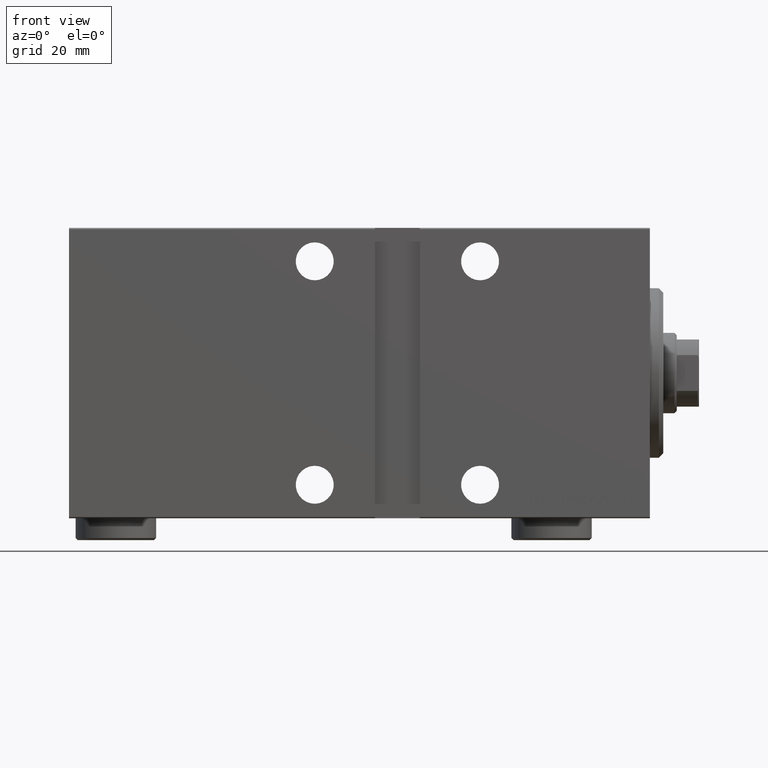
[diagram: clean part render]
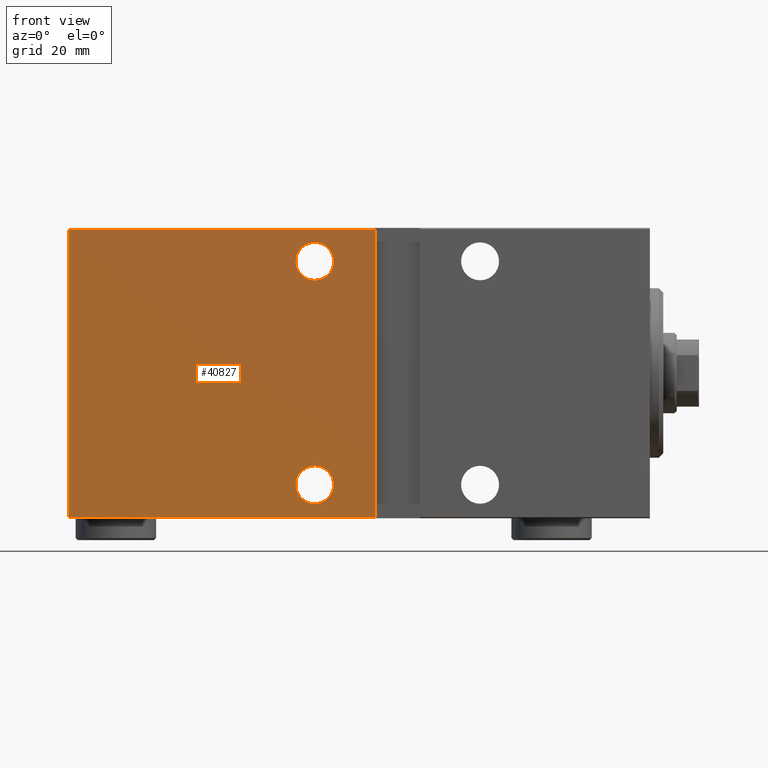
[diagram: same view with one face highlighted and labeled with its STEP entity id]
A machine part, front view. The second image highlights one B-rep face of the part: STEP entity #40827.
In plain terms, the highlighted planar face has unit normal (-0, 1, -0).
Its self-contained STEP definition (entity closure, byte-faithful):
#26 = CARTESIAN_POINT ( 'NONE',  ( 61.49999999999999289, 22.50000000000000000, -32.20000000000001705 ) ) ;
#214 = VECTOR ( 'NONE', #21387, 1000.000000000000000 ) ;
#276 = CIRCLE ( 'NONE', #30788, 4.250000000000003553 ) ;
#669 = FACE_BOUND ( 'NONE', #14080, .T. ) ;
#1561 = VERTEX_POINT ( 'NONE', #6913 ) ;
#2589 = CARTESIAN_POINT ( 'NONE',  ( 75.00000000000001421, 22.50000000000001776, 25.00000000000000000 ) ) ;
#2698 = EDGE_CURVE ( 'NONE', #17391, #28185, #17038, .T. ) ;
#2772 = CARTESIAN_POINT ( 'NONE',  ( 75.00000000000001421, 22.50000000000001776, -20.74999999999999645 ) ) ;
#2833 = DIRECTION ( 'NONE',  ( 0.000000000000000000, 1.000000000000000000, 0.000000000000000000 ) ) ;
#3038 = CARTESIAN_POINT ( 'NONE',  ( 130.0000000000000000, 22.50000000000000355, -32.20000000000001705 ) ) ;
#3775 = EDGE_LOOP ( 'NONE', ( #32146, #29885, #4820, #37360 ) ) ;
#4644 = EDGE_CURVE ( 'NONE', #30098, #9231, #18813, .T. ) ;
#4820 = ORIENTED_EDGE ( 'NONE', *, *, #26434, .F. ) ;
#5696 = DIRECTION ( 'NONE',  ( 0.000000000000000000, 0.000000000000000000, 1.000000000000000000 ) ) ;
#6893 = CARTESIAN_POINT ( 'NONE',  ( 75.00000000000001421, 22.50000000000001776, -25.00000000000000000 ) ) ;
#6913 = CARTESIAN_POINT ( 'NONE',  ( 130.0000000000000000, 22.49999999999999645, 32.20000000000003126 ) ) ;
#8387 = VERTEX_POINT ( 'NONE', #2772 ) ;
#9231 = VERTEX_POINT ( 'NONE', #35464 ) ;
#10181 = CARTESIAN_POINT ( 'NONE',  ( 61.50000000000000711, 22.50000000000000000, 32.20000000000003126 ) ) ;
#10672 = PLANE ( 'NONE',  #29787 ) ;
#11704 = DIRECTION ( 'NONE',  ( -2.135044278125300850E-16, 0.000000000000000000, -1.000000000000000000 ) ) ;
#12618 = VECTOR ( 'NONE', #17737, 1000.000000000000000 ) ;
#12761 = EDGE_CURVE ( 'NONE', #17391, #1561, #28276, .T. ) ;
#12803 = AXIS2_PLACEMENT_3D ( 'NONE', #6893, #13566, #30225 ) ;
#13075 = CARTESIAN_POINT ( 'NONE',  ( 75.00000000000001421, 22.50000000000001776, -29.25000000000000355 ) ) ;
#13566 = DIRECTION ( 'NONE',  ( 0.000000000000000000, 1.000000000000000000, 0.000000000000000000 ) ) ;
#14080 = EDGE_LOOP ( 'NONE', ( #40995, #21907 ) ) ;
#15159 = EDGE_CURVE ( 'NONE', #26261, #8387, #276, .T. ) ;
#17038 = LINE ( 'NONE', #20587, #34494 ) ;
#17391 = VERTEX_POINT ( 'NONE', #3038 ) ;
#17737 = DIRECTION ( 'NONE',  ( 1.000000000000000000, 0.000000000000000000, 0.000000000000000000 ) ) ;
#18806 = CARTESIAN_POINT ( 'NONE',  ( 61.50000000000000711, 22.50000000000000000, 32.50000000000000000 ) ) ;
#18813 = CIRCLE ( 'NONE', #43661, 4.250000000000003553 ) ;
#19165 = CIRCLE ( 'NONE', #12803, 4.250000000000003553 ) ;
#19765 = CIRCLE ( 'NONE', #29002, 4.250000000000003553 ) ;
#20587 = CARTESIAN_POINT ( 'NONE',  ( 130.0000000000000000, 22.50000000000000355, -32.20000000000001705 ) ) ;
#21067 = CARTESIAN_POINT ( 'NONE',  ( 130.0000000000000000, 22.49999999999999645, 32.20000000000003126 ) ) ;
#21099 = FACE_OUTER_BOUND ( 'NONE', #3775, .T. ) ;
#21387 = DIRECTION ( 'NONE',  ( 0.000000000000000000, -1.067522139062650425E-16, 1.000000000000000000 ) ) ;
#21907 = ORIENTED_EDGE ( 'NONE', *, *, #15159, .F. ) ;
#21922 = LINE ( 'NONE', #18806, #40211 ) ;
#23004 = DIRECTION ( 'NONE',  ( 0.000000000000000000, 1.000000000000000000, 0.000000000000000000 ) ) ;
#26261 = VERTEX_POINT ( 'NONE', #13075 ) ;
#26377 = DIRECTION ( 'NONE',  ( 0.000000000000000000, 0.000000000000000000, 1.000000000000000000 ) ) ;
#26434 = EDGE_CURVE ( 'NONE', #43563, #28185, #21922, .T. ) ;
#26589 = CARTESIAN_POINT ( 'NONE',  ( 75.00000000000001421, 22.50000000000001776, 25.00000000000000000 ) ) ;
#27065 = ORIENTED_EDGE ( 'NONE', *, *, #32532, .F. ) ;
#27379 = DIRECTION ( 'NONE',  ( 0.000000000000000000, 0.000000000000000000, 1.000000000000000000 ) ) ;
#28185 = VERTEX_POINT ( 'NONE', #26 ) ;
#28207 = CARTESIAN_POINT ( 'NONE',  ( 130.0000000000000000, 22.50000000000000355, -32.50000000000000000 ) ) ;
#28276 = LINE ( 'NONE', #31390, #214 ) ;
#28460 = CARTESIAN_POINT ( 'NONE',  ( 75.00000000000001421, 22.50000000000001776, 20.74999999999999645 ) ) ;
#28554 = EDGE_CURVE ( 'NONE', #43563, #1561, #37968, .T. ) ;
#29002 = AXIS2_PLACEMENT_3D ( 'NONE', #26589, #2833, #26377 ) ;
#29787 = AXIS2_PLACEMENT_3D ( 'NONE', #28207, #35315, #34662 ) ;
#29885 = ORIENTED_EDGE ( 'NONE', *, *, #2698, .T. ) ;
#30098 = VERTEX_POINT ( 'NONE', #28460 ) ;
#30225 = DIRECTION ( 'NONE',  ( 0.000000000000000000, 0.000000000000000000, 1.000000000000000000 ) ) ;
#30788 = AXIS2_PLACEMENT_3D ( 'NONE', #31153, #34043, #27379 ) ;
#31153 = CARTESIAN_POINT ( 'NONE',  ( 75.00000000000001421, 22.50000000000001776, -25.00000000000000000 ) ) ;
#31390 = CARTESIAN_POINT ( 'NONE',  ( 130.0000000000000000, 22.50000000000000355, -32.50000000000000000 ) ) ;
#32146 = ORIENTED_EDGE ( 'NONE', *, *, #12761, .F. ) ;
#32532 = EDGE_CURVE ( 'NONE', #9231, #30098, #19765, .T. ) ;
#33478 = DIRECTION ( 'NONE',  ( -1.000000000000000000, 0.000000000000000000, 0.000000000000000000 ) ) ;
#34043 = DIRECTION ( 'NONE',  ( 0.000000000000000000, 1.000000000000000000, 0.000000000000000000 ) ) ;
#34494 = VECTOR ( 'NONE', #33478, 1000.000000000000000 ) ;
#34662 = DIRECTION ( 'NONE',  ( 0.000000000000000000, 1.067522139062650425E-16, -1.000000000000000000 ) ) ;
#35315 = DIRECTION ( 'NONE',  ( 0.000000000000000000, -1.000000000000000000, -1.067522139062650425E-16 ) ) ;
#35464 = CARTESIAN_POINT ( 'NONE',  ( 75.00000000000001421, 22.50000000000001776, 29.25000000000000355 ) ) ;
#35809 = EDGE_LOOP ( 'NONE', ( #27065, #39156 ) ) ;
#37360 = ORIENTED_EDGE ( 'NONE', *, *, #28554, .T. ) ;
#37774 = FACE_BOUND ( 'NONE', #35809, .T. ) ;
#37968 = LINE ( 'NONE', #21067, #12618 ) ;
#39156 = ORIENTED_EDGE ( 'NONE', *, *, #4644, .F. ) ;
#40211 = VECTOR ( 'NONE', #11704, 1000.000000000000000 ) ;
#40772 = EDGE_CURVE ( 'NONE', #8387, #26261, #19165, .T. ) ;
#40827 = ADVANCED_FACE ( 'NONE', ( #669, #37774, #21099 ), #10672, .F. ) ;
#40995 = ORIENTED_EDGE ( 'NONE', *, *, #40772, .F. ) ;
#43563 = VERTEX_POINT ( 'NONE', #10181 ) ;
#43661 = AXIS2_PLACEMENT_3D ( 'NONE', #2589, #23004, #5696 ) ;